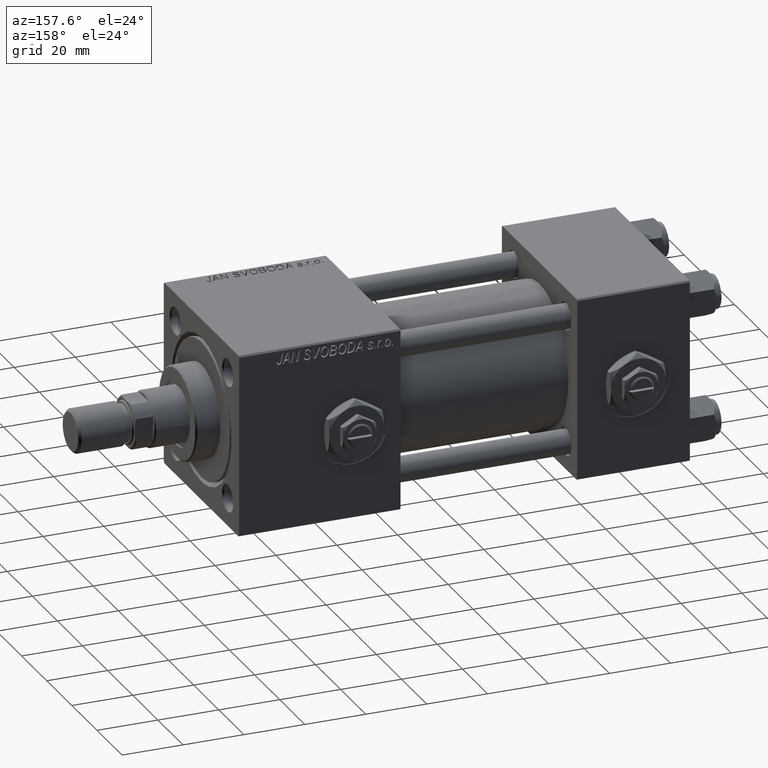
[diagram: clean part render]
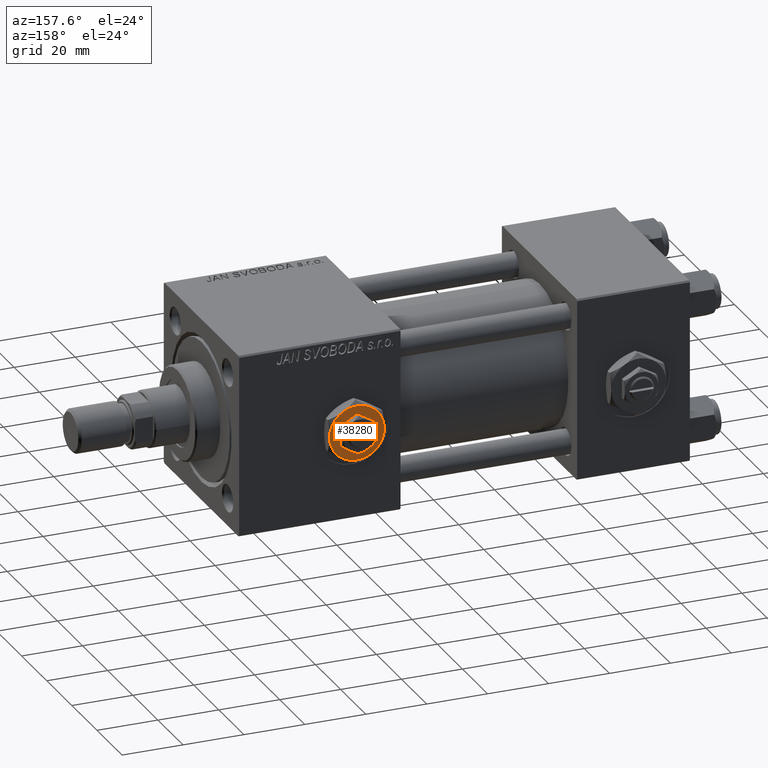
[diagram: same view with one face highlighted and labeled with its STEP entity id]
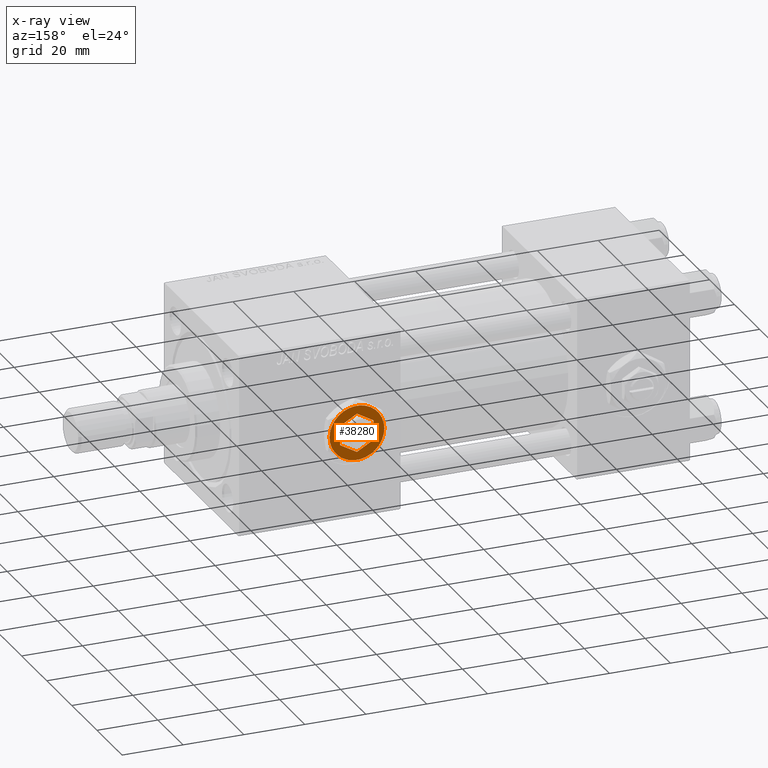
[diagram: x-ray of the same camera — body ghosted, the highlighted face saturated]
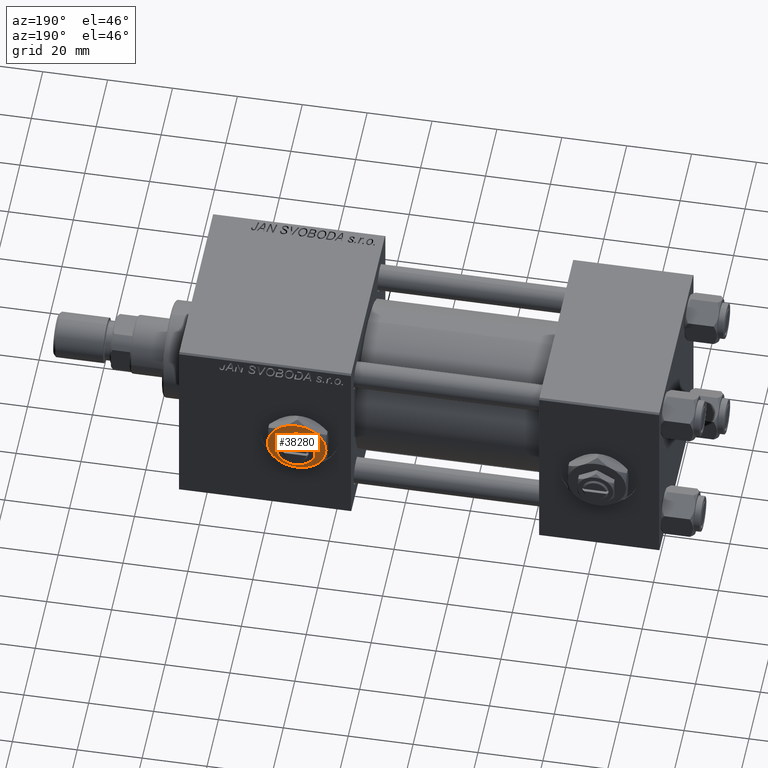
[diagram: same view with one face highlighted and labeled with its STEP entity id]
A machine part, auxiliary view. The second image highlights one B-rep face of the part: STEP entity #38280.
The next image is the same camera in x-ray: the body ghosted, the highlighted face saturated — about 0% of this face is hidden behind the body in this view.
A second angle (auxiliary view) of the same face is appended — the face is thin or edge-on in the first view.
In plain terms, the highlighted planar face has unit normal (0, 1, 0).
Its self-contained STEP definition (entity closure, byte-faithful):
#329 = DIRECTION ( 'NONE',  ( -0.8660254037844385966, -0.4999999999999999445, 0.000000000000000000 ) ) ;
#349 = AXIS2_PLACEMENT_3D ( 'NONE', #12573, #16572, #44574 ) ;
#372 = DIRECTION ( 'NONE',  ( 1.000000000000000000, 0.000000000000000000, 0.000000000000000000 ) ) ;
#697 = CARTESIAN_POINT ( 'NONE',  ( 8.999999999999998224, 0.000000000000000000, 4.299999999999999822 ) ) ;
#1459 = FACE_OUTER_BOUND ( 'NONE', #10930, .T. ) ;
#1725 = CARTESIAN_POINT ( 'NONE',  ( 0.000000000000000000, 0.000000000000000000, 4.299999999999999822 ) ) ;
#1801 = EDGE_CURVE ( 'NONE', #35297, #10580, #3701, .T. ) ;
#1878 = VERTEX_POINT ( 'NONE', #16511 ) ;
#2459 = EDGE_CURVE ( 'NONE', #40969, #35297, #27978, .T. ) ;
#3294 = CARTESIAN_POINT ( 'NONE',  ( 0.000000000000000000, 6.350852961085883486, 4.299999999999999822 ) ) ;
#3701 = LINE ( 'NONE', #11979, #14906 ) ;
#3846 = VERTEX_POINT ( 'NONE', #3294 ) ;
#3906 = ORIENTED_EDGE ( 'NONE', *, *, #31342, .T. ) ;
#6202 = CARTESIAN_POINT ( 'NONE',  ( 5.500000000000000888, -3.175426480542940855, 4.299999999999999822 ) ) ;
#6434 = VERTEX_POINT ( 'NONE', #46704 ) ;
#6493 = DIRECTION ( 'NONE',  ( 1.000000000000000000, 0.000000000000000000, -0.000000000000000000 ) ) ;
#6596 = ORIENTED_EDGE ( 'NONE', *, *, #43323, .T. ) ;
#6652 = CARTESIAN_POINT ( 'NONE',  ( -5.500000000000000000, 3.175426480542941743, 4.299999999999999822 ) ) ;
#6921 = DIRECTION ( 'NONE',  ( 0.000000000000000000, -1.000000000000000000, 0.000000000000000000 ) ) ;
#7143 = DIRECTION ( 'NONE',  ( 0.000000000000000000, 0.000000000000000000, 1.000000000000000000 ) ) ;
#7156 = EDGE_CURVE ( 'NONE', #6434, #1878, #15814, .T. ) ;
#8372 = CARTESIAN_POINT ( 'NONE',  ( 0.000000000000000000, 0.000000000000000000, 4.299999999999999822 ) ) ;
#9765 = LINE ( 'NONE', #34280, #27029 ) ;
#9899 = CARTESIAN_POINT ( 'NONE',  ( 5.499999999999999112, 3.175426480542943075, 4.299999999999999822 ) ) ;
#10580 = VERTEX_POINT ( 'NONE', #27948 ) ;
#10930 = EDGE_LOOP ( 'NONE', ( #3906, #49335, #22612, #31123, #6596, #41309 ) ) ;
#11762 = VERTEX_POINT ( 'NONE', #697 ) ;
#11965 = EDGE_CURVE ( 'NONE', #37184, #20651, #52639, .T. ) ;
#11979 = CARTESIAN_POINT ( 'NONE',  ( -5.500000000000000000, -3.175426480542942187, 4.299999999999999822 ) ) ;
#12431 = DIRECTION ( 'NONE',  ( 0.000000000000000000, 0.000000000000000000, 1.000000000000000000 ) ) ;
#12571 = DIRECTION ( 'NONE',  ( 0.000000000000000000, 0.000000000000000000, 1.000000000000000000 ) ) ;
#12573 = CARTESIAN_POINT ( 'NONE',  ( 0.000000000000000000, 0.000000000000000000, 4.299999999999999822 ) ) ;
#12694 = DIRECTION ( 'NONE',  ( 1.000000000000000000, 0.000000000000000000, 0.000000000000000000 ) ) ;
#12997 = AXIS2_PLACEMENT_3D ( 'NONE', #44844, #12571, #13092 ) ;
#13092 = DIRECTION ( 'NONE',  ( 1.000000000000000000, 0.000000000000000000, 0.000000000000000000 ) ) ;
#13454 = VECTOR ( 'NONE', #18618, 1000.000000000000000 ) ;
#14122 = DIRECTION ( 'NONE',  ( 0.000000000000000000, 0.000000000000000000, 1.000000000000000000 ) ) ;
#14906 = VECTOR ( 'NONE', #37036, 1000.000000000000000 ) ;
#14948 = VECTOR ( 'NONE', #6921, 1000.000000000000000 ) ;
#15814 = CIRCLE ( 'NONE', #24335, 9.000000000000000000 ) ;
#16107 = CIRCLE ( 'NONE', #52743, 9.000000000000000000 ) ;
#16511 = CARTESIAN_POINT ( 'NONE',  ( 4.499999999999997335, -7.794228634059948035, 4.299999999999999822 ) ) ;
#16572 = DIRECTION ( 'NONE',  ( 0.000000000000000000, 0.000000000000000000, 1.000000000000000000 ) ) ;
#17135 = VECTOR ( 'NONE', #38753, 1000.000000000000000 ) ;
#17506 = ORIENTED_EDGE ( 'NONE', *, *, #24769, .F. ) ;
#17903 = AXIS2_PLACEMENT_3D ( 'NONE', #28949, #12431, #12694 ) ;
#17986 = PLANE ( 'NONE',  #29120 ) ;
#18146 = VECTOR ( 'NONE', #329, 1000.000000000000114 ) ;
#18383 = CARTESIAN_POINT ( 'NONE',  ( 0.000000000000000000, 0.000000000000000000, 4.299999999999999822 ) ) ;
#18618 = DIRECTION ( 'NONE',  ( 0.8660254037844388186, 0.4999999999999997224, 0.000000000000000000 ) ) ;
#20651 = VERTEX_POINT ( 'NONE', #51978 ) ;
#22592 = ORIENTED_EDGE ( 'NONE', *, *, #44934, .F. ) ;
#22612 = ORIENTED_EDGE ( 'NONE', *, *, #11965, .T. ) ;
#23350 = CIRCLE ( 'NONE', #349, 9.000000000000000000 ) ;
#24335 = AXIS2_PLACEMENT_3D ( 'NONE', #18383, #14122, #47173 ) ;
#24769 = EDGE_CURVE ( 'NONE', #32535, #3846, #9765, .T. ) ;
#25585 = EDGE_CURVE ( 'NONE', #10580, #26756, #42368, .T. ) ;
#25842 = CARTESIAN_POINT ( 'NONE',  ( 4.500000000000000000, 7.794228634059947147, 4.299999999999999822 ) ) ;
#26756 = VERTEX_POINT ( 'NONE', #50524 ) ;
#27029 = VECTOR ( 'NONE', #38816, 1000.000000000000000 ) ;
#27937 = DIRECTION ( 'NONE',  ( 1.000000000000000000, 0.000000000000000000, 0.000000000000000000 ) ) ;
#27948 = CARTESIAN_POINT ( 'NONE',  ( -1.343581385738006573E-15, -6.350852961085881709, 4.299999999999999822 ) ) ;
#27978 = LINE ( 'NONE', #6652, #14948 ) ;
#28949 = CARTESIAN_POINT ( 'NONE',  ( 0.000000000000000000, 0.000000000000000000, 4.299999999999999822 ) ) ;
#29120 = AXIS2_PLACEMENT_3D ( 'NONE', #1725, #31033, #6493 ) ;
#29980 = CIRCLE ( 'NONE', #12997, 9.000000000000000000 ) ;
#30320 = ORIENTED_EDGE ( 'NONE', *, *, #2459, .F. ) ;
#30744 = LINE ( 'NONE', #6202, #17135 ) ;
#31033 = DIRECTION ( 'NONE',  ( 0.000000000000000000, 0.000000000000000000, 1.000000000000000000 ) ) ;
#31123 = ORIENTED_EDGE ( 'NONE', *, *, #39639, .T. ) ;
#31342 = EDGE_CURVE ( 'NONE', #1878, #11762, #40047, .T. ) ;
#31387 = ORIENTED_EDGE ( 'NONE', *, *, #36457, .F. ) ;
#32098 = DIRECTION ( 'NONE',  ( 0.000000000000000000, 0.000000000000000000, 1.000000000000000000 ) ) ;
#32451 = ORIENTED_EDGE ( 'NONE', *, *, #1801, .F. ) ;
#32535 = VERTEX_POINT ( 'NONE', #9899 ) ;
#32756 = EDGE_CURVE ( 'NONE', #11762, #37184, #16107, .T. ) ;
#33893 = EDGE_LOOP ( 'NONE', ( #22592, #17506, #31387, #39201, #32451, #30320 ) ) ;
#34280 = CARTESIAN_POINT ( 'NONE',  ( 5.499999999999999112, 3.175426480542943075, 4.299999999999999822 ) ) ;
#35297 = VERTEX_POINT ( 'NONE', #51872 ) ;
#36378 = VERTEX_POINT ( 'NONE', #43019 ) ;
#36446 = AXIS2_PLACEMENT_3D ( 'NONE', #8372, #32098, #372 ) ;
#36457 = EDGE_CURVE ( 'NONE', #26756, #32535, #30744, .T. ) ;
#36846 = CARTESIAN_POINT ( 'NONE',  ( 0.000000000000000000, 6.350852961085883486, 4.299999999999999822 ) ) ;
#37036 = DIRECTION ( 'NONE',  ( 0.8660254037844387076, -0.4999999999999998890, 0.000000000000000000 ) ) ;
#37184 = VERTEX_POINT ( 'NONE', #25842 ) ;
#37460 = CARTESIAN_POINT ( 'NONE',  ( -5.500000000000000000, 3.175426480542941743, 4.299999999999999822 ) ) ;
#38280 = ADVANCED_FACE ( 'NONE', ( #1459, #46247 ), #17986, .T. ) ;
#38628 = CARTESIAN_POINT ( 'NONE',  ( 0.000000000000000000, 0.000000000000000000, 4.299999999999999822 ) ) ;
#38753 = DIRECTION ( 'NONE',  ( -2.731481088613017227E-16, 1.000000000000000000, 0.000000000000000000 ) ) ;
#38816 = DIRECTION ( 'NONE',  ( -0.8660254037844387076, 0.4999999999999999445, 0.000000000000000000 ) ) ;
#39201 = ORIENTED_EDGE ( 'NONE', *, *, #25585, .F. ) ;
#39639 = EDGE_CURVE ( 'NONE', #20651, #36378, #29980, .T. ) ;
#40047 = CIRCLE ( 'NONE', #17903, 9.000000000000000000 ) ;
#40969 = VERTEX_POINT ( 'NONE', #37460 ) ;
#41309 = ORIENTED_EDGE ( 'NONE', *, *, #7156, .T. ) ;
#42368 = LINE ( 'NONE', #47145, #13454 ) ;
#43019 = CARTESIAN_POINT ( 'NONE',  ( -9.000000000000000000, 0.000000000000000000, 4.299999999999999822 ) ) ;
#43323 = EDGE_CURVE ( 'NONE', #36378, #6434, #23350, .T. ) ;
#44574 = DIRECTION ( 'NONE',  ( 1.000000000000000000, 0.000000000000000000, 0.000000000000000000 ) ) ;
#44844 = CARTESIAN_POINT ( 'NONE',  ( 0.000000000000000000, 0.000000000000000000, 4.299999999999999822 ) ) ;
#44934 = EDGE_CURVE ( 'NONE', #3846, #40969, #49396, .T. ) ;
#46247 = FACE_BOUND ( 'NONE', #33893, .T. ) ;
#46704 = CARTESIAN_POINT ( 'NONE',  ( -4.499999999999998224, -7.794228634059947147, 4.299999999999999822 ) ) ;
#47145 = CARTESIAN_POINT ( 'NONE',  ( -1.343581385738006573E-15, -6.350852961085881709, 4.299999999999999822 ) ) ;
#47173 = DIRECTION ( 'NONE',  ( 1.000000000000000000, 0.000000000000000000, 0.000000000000000000 ) ) ;
#49335 = ORIENTED_EDGE ( 'NONE', *, *, #32756, .T. ) ;
#49396 = LINE ( 'NONE', #36846, #18146 ) ;
#50524 = CARTESIAN_POINT ( 'NONE',  ( 5.500000000000000888, -3.175426480542940855, 4.299999999999999822 ) ) ;
#51872 = CARTESIAN_POINT ( 'NONE',  ( -5.500000000000000000, -3.175426480542942187, 4.299999999999999822 ) ) ;
#51978 = CARTESIAN_POINT ( 'NONE',  ( -4.500000000000000000, 7.794228634059947147, 4.299999999999999822 ) ) ;
#52639 = CIRCLE ( 'NONE', #36446, 9.000000000000000000 ) ;
#52743 = AXIS2_PLACEMENT_3D ( 'NONE', #38628, #7143, #27937 ) ;